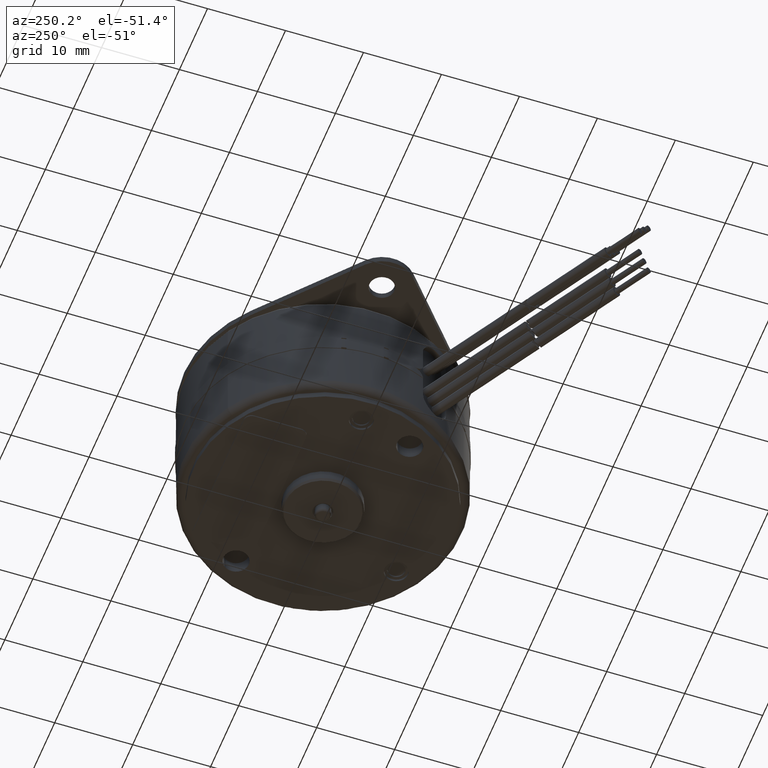
[diagram: clean part render]
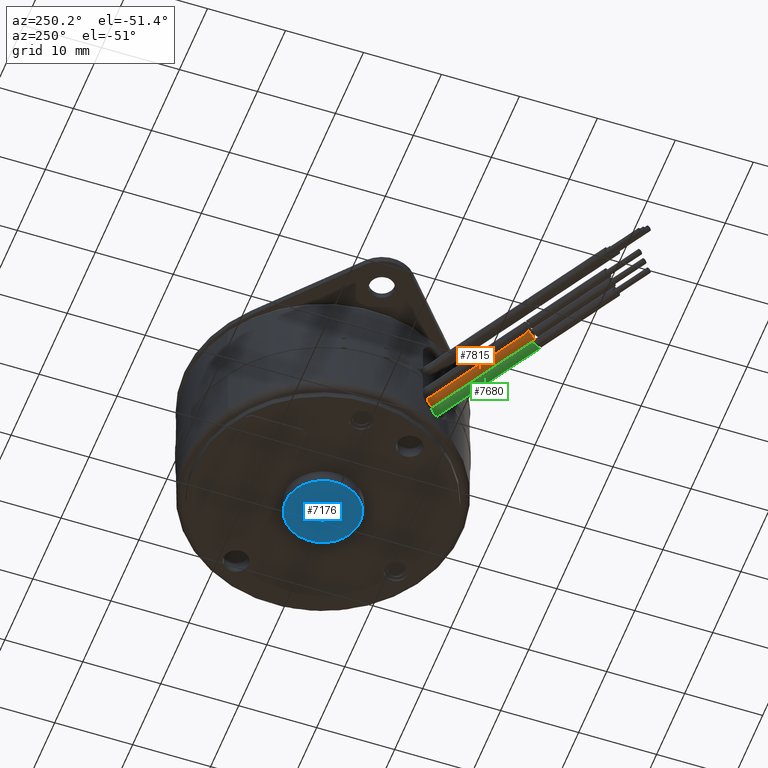
[diagram: same view with three faces highlighted in distinct colors, each labeled with its STEP entity id]
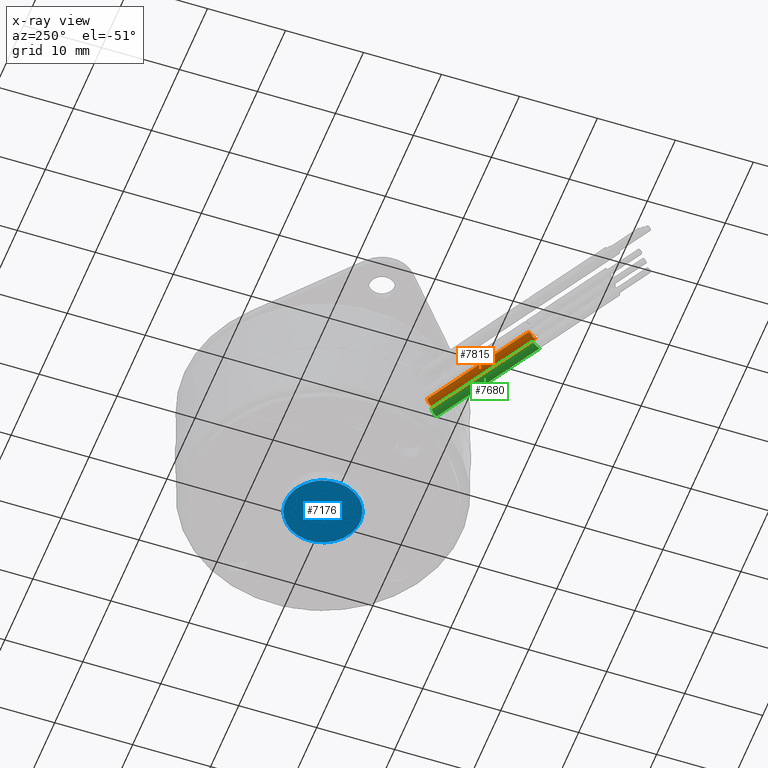
[diagram: x-ray of the same camera — body ghosted, the three highlighted faces saturated]
A machine part, auxiliary view with three faces highlighted in distinct colors.
The next image is the same camera in x-ray (body ghosted, the three faces saturated) — at least one of them is partly hidden behind the body in this view.
Their STEP definitions:

[orange] entity #7815 — the highlighted cylindrical surface (edge-blend (fillet) strip) has radius 0.635 mm, axis along (-0.866, -0.5, 0).
#2962=CARTESIAN_POINT('',(-1.138811806548E0,-6.286257896074E-1,-1.2E-1));
#2963=CARTESIAN_POINT('',(-1.139485406641E0,-6.290146928023E-1,
-1.212467608280E-1));
#2964=CARTESIAN_POINT('',(-1.140839860051E0,-6.300060442618E-1,
-1.236040337292E-1));
#2965=CARTESIAN_POINT('',(-1.142638944219E0,-6.318768995661E-1,
-1.269308235863E-1));
#2966=CARTESIAN_POINT('',(-1.143982488677E0,-6.339574052467E-1,
-1.300546549770E-1));
#2967=CARTESIAN_POINT('',(-1.144706708732E0,-6.361068004113E-1,
-1.329385435562E-1));
#2968=CARTESIAN_POINT('',(-1.144770985336E0,-6.381502306858E-1,
-1.354486534722E-1));
#2969=CARTESIAN_POINT('',(-1.144254890660E0,-6.401587388723E-1,
-1.377112974811E-1));
#2970=CARTESIAN_POINT('',(-1.143121210373E0,-6.422760705461E-1,
-1.398388955975E-1));
#2971=CARTESIAN_POINT('',(-1.141353475422E0,-6.445702752428E-1,
-1.417709501729E-1));
#2972=CARTESIAN_POINT('',(-1.139078218802E0,-6.471070944689E-1,
-1.433763897757E-1));
#2973=CARTESIAN_POINT('',(-1.136652120935E0,-6.498908981356E-1,
-1.444808550989E-1));
#2974=CARTESIAN_POINT('',(-1.134504726468E0,-6.527930399924E-1,
-1.450113853302E-1));
#2975=CARTESIAN_POINT('',(-1.132699061758E0,-6.558885791974E-1,
-1.450317036214E-1));
#2976=CARTESIAN_POINT('',(-1.131227309388E0,-6.592198669359E-1,
-1.445256153670E-1));
#2977=CARTESIAN_POINT('',(-1.130050998401E0,-6.626062286696E-1,
-1.434941480099E-1));
#2978=CARTESIAN_POINT('',(-1.128990580436E0,-6.658693222274E-1,
-1.419408871852E-1));
#2979=CARTESIAN_POINT('',(-1.127896227702E0,-6.686131393046E-1,
-1.400279286505E-1));
#2980=CARTESIAN_POINT('',(-1.126643302707E0,-6.707171633581E-1,
-1.379081481444E-1));
#2981=CARTESIAN_POINT('',(-1.125184802608E0,-6.722132358638E-1,
-1.356614700066E-1));
#2982=CARTESIAN_POINT('',(-1.123437801195E0,-6.732156820413E-1,
-1.332071223932E-1));
#2983=CARTESIAN_POINT('',(-1.121223487475E0,-6.737304186039E-1,
-1.303186198003E-1));
#2984=CARTESIAN_POINT('',(-1.118632558143E0,-6.736388651206E-1,
-1.270497526756E-1));
#2985=CARTESIAN_POINT('',(-1.116008157394E0,-6.729920868712E-1,
-1.235904122078E-1));
#2986=CARTESIAN_POINT('',(-1.114476641089E0,-6.723109021978E-1,
-1.212305367408E-1));
#2987=CARTESIAN_POINT('',(-1.113811806548E0,-6.719270597965E-1,-1.2E-1));
#2989=CARTESIAN_POINT('',(-5.677662643132E-1,-3.566675189975E-1,-1.2E-1));
#2990=CARTESIAN_POINT('',(-5.677662643132E-1,-3.566675189975E-1,
-1.225904274041E-1));
#2991=CARTESIAN_POINT('',(-5.681989034025E-1,-3.559801164018E-1,
-1.277947334159E-1));
#2992=CARTESIAN_POINT('',(-5.701076587032E-1,-3.529232327402E-1,
-1.349152310100E-1));
#2993=CARTESIAN_POINT('',(-5.730848500649E-1,-3.480776956131E-1,
-1.405961939504E-1));
#2994=CARTESIAN_POINT('',(-5.767518699610E-1,-3.419748936371E-1,
-1.441913101402E-1));
#2995=CARTESIAN_POINT('',(-5.793770744339E-1,-3.374893805309E-1,
-1.449999999397E-1));
#2996=CARTESIAN_POINT('',(-5.806699943492E-1,-3.352499775474E-1,
-1.449999999397E-1));
#2998=CARTESIAN_POINT('',(-5.806699943492E-1,-3.352499775474E-1,
-1.449999999397E-1));
#2999=CARTESIAN_POINT('',(-5.819653642051E-1,-3.330063311424E-1,
-1.449999999396E-1));
#3000=CARTESIAN_POINT('',(-5.845409076982E-1,-3.284836490856E-1,
-1.441883684441E-1));
#3001=CARTESIAN_POINT('',(-5.879934371359E-1,-3.222546015037E-1,
-1.405856496052E-1));
#3002=CARTESIAN_POINT('',(-5.906977992922E-1,-3.172595839781E-1,
-1.349045365092E-1));
#3003=CARTESIAN_POINT('',(-5.923888375690E-1,-3.140816666538E-1,
-1.277828848581E-1));
#3004=CARTESIAN_POINT('',(-5.927662643132E-1,-3.133662488084E-1,
-1.225857545199E-1));
#3005=CARTESIAN_POINT('',(-5.927662643132E-1,-3.133662488084E-1,-1.2E-1));
#3040=DIRECTION('',(8.660254037844E-1,5.E-1,1.648556462670E-14));
#3041=VECTOR('',#3040,6.305190815981E-1);
#3042=CARTESIAN_POINT('',(-1.138811806548E0,-6.286257896074E-1,-1.2E-1));
#3043=LINE('',#3042,#3041);
#3062=DIRECTION('',(-8.660254037844E-1,-5.E-1,0.E0));
#3063=VECTOR('',#3062,6.305190815981E-1);
#3064=CARTESIAN_POINT('',(-5.677662643132E-1,-3.566675189975E-1,-1.2E-1));
#3065=LINE('',#3064,#3063);
#3864=VERTEX_POINT('',#2998);
#3865=VERTEX_POINT('',#3005);
#3866=VERTEX_POINT('',#2989);
#4243=VERTEX_POINT('',#2962);
#4244=VERTEX_POINT('',#2987);
#7800=CARTESIAN_POINT('',(-5.606946750632E-1,-3.237172215810E-1,-1.2E-1));
#7801=DIRECTION('',(-8.660254037844E-1,-5.E-1,0.E0));
#7802=DIRECTION('',(-5.E-1,8.660254037844E-1,0.E0));
#7803=AXIS2_PLACEMENT_3D('',#7800,#7801,#7802);
#7804=CYLINDRICAL_SURFACE('',#7803,2.499999999996E-2);
#7806=ORIENTED_EDGE('',*,*,#7805,.T.);
#7808=ORIENTED_EDGE('',*,*,#7807,.F.);
#7809=ORIENTED_EDGE('',*,*,#5673,.T.);
#7810=ORIENTED_EDGE('',*,*,#5671,.T.);
#7812=ORIENTED_EDGE('',*,*,#7811,.F.);
#7813=EDGE_LOOP('',(#7806,#7808,#7809,#7810,#7812));
#7814=FACE_OUTER_BOUND('',#7813,.F.);
#7815=ADVANCED_FACE('',(#7814),#7804,.T.);
#2988=B_SPLINE_CURVE_WITH_KNOTS('',3,(#2962,#2963,#2964,#2965,#2966,#2967,#2968,
#2969,#2970,#2971,#2972,#2973,#2974,#2975,#2976,#2977,#2978,#2979,#2980,#2981,
#2982,#2983,#2984,#2985,#2986,#2987),.UNSPECIFIED.,.F.,.F.,(4,1,1,1,1,1,1,1,1,1,
1,1,1,1,1,1,1,1,1,1,1,1,1,4),(0.E0,4.347826086957E-2,8.695652173913E-2,
1.304347826087E-1,1.739130434783E-1,2.173913043478E-1,2.608695652174E-1,
3.043478260870E-1,3.478260869565E-1,3.913043478261E-1,4.347826086957E-1,
4.782608695652E-1,5.217391304348E-1,5.652173913043E-1,6.086956521739E-1,
6.521739130435E-1,6.956521739130E-1,7.391304347826E-1,7.826086956522E-1,
8.260869565217E-1,8.695652173913E-1,9.130434782609E-1,9.565217391304E-1,1.E0),
.UNSPECIFIED.);
#2997=B_SPLINE_CURVE_WITH_KNOTS('',3,(#2989,#2990,#2991,#2992,#2993,#2994,#2995,
#2996),.UNSPECIFIED.,.F.,.F.,(4,1,1,1,1,4),(0.E0,2.E-1,4.E-1,6.E-1,8.E-1,1.E0),
.UNSPECIFIED.);
#3006=B_SPLINE_CURVE_WITH_KNOTS('',3,(#2998,#2999,#3000,#3001,#3002,#3003,#3004,
#3005),.UNSPECIFIED.,.F.,.F.,(4,1,1,1,1,4),(0.E0,2.E-1,4.E-1,6.E-1,8.E-1,1.E0),
.UNSPECIFIED.);
#5671=EDGE_CURVE('',#3864,#3865,#3006,.T.);
#5673=EDGE_CURVE('',#3866,#3864,#2997,.T.);
#7805=EDGE_CURVE('',#4243,#4244,#2988,.T.);
#7807=EDGE_CURVE('',#3866,#4244,#3065,.T.);
#7811=EDGE_CURVE('',#4243,#3865,#3043,.T.);

[blue] entity #7176 — the highlighted planar face has unit normal (0, 0, 1).
#2205=CARTESIAN_POINT('',(0.E0,0.E0,-4.12E-1));
#2206=DIRECTION('',(0.E0,0.E0,1.E0));
#2207=DIRECTION('',(-5.000000000001E-1,-8.660254037844E-1,0.E0));
#2208=AXIS2_PLACEMENT_3D('',#2205,#2206,#2207);
#2210=CARTESIAN_POINT('',(0.E0,0.E0,-4.12E-1));
#2211=DIRECTION('',(0.E0,0.E0,1.E0));
#2212=DIRECTION('',(5.000000000001E-1,8.660254037844E-1,0.E0));
#2213=AXIS2_PLACEMENT_3D('',#2210,#2211,#2212);
#2215=CARTESIAN_POINT('',(0.E0,0.E0,-4.120000000001E-1));
#2216=DIRECTION('',(0.E0,0.E0,-1.E0));
#2217=DIRECTION('',(-5.E-1,-8.660254037844E-1,0.E0));
#2218=AXIS2_PLACEMENT_3D('',#2215,#2216,#2217);
#2220=CARTESIAN_POINT('',(0.E0,0.E0,-4.120000000001E-1));
#2221=DIRECTION('',(0.E0,0.E0,-1.E0));
#2222=DIRECTION('',(5.E-1,8.660254037844E-1,0.E0));
#2223=AXIS2_PLACEMENT_3D('',#2220,#2221,#2222);
#4361=CARTESIAN_POINT('',(9.422950184415E-2,1.632102847659E-1,-4.12E-1));
#4362=VERTEX_POINT('',#4361);
#4363=CARTESIAN_POINT('',(-9.422950184414E-2,-1.632102847659E-1,-4.12E-1));
#4364=VERTEX_POINT('',#4363);
#4365=CARTESIAN_POINT('',(-2.500000000002E-2,-4.330127018925E-2,
-4.120000000001E-1));
#4366=CARTESIAN_POINT('',(2.500000000002E-2,4.330127018925E-2,
-4.120000000001E-1));
#4367=VERTEX_POINT('',#4365);
#4368=VERTEX_POINT('',#4366);
#7161=CARTESIAN_POINT('',(0.E0,0.E0,-4.12E-1));
#7162=DIRECTION('',(0.E0,0.E0,1.E0));
#7163=DIRECTION('',(-5.E-1,-8.660254037844E-1,0.E0));
#7164=AXIS2_PLACEMENT_3D('',#7161,#7162,#7163);
#7165=PLANE('',#7164);
#7166=ORIENTED_EDGE('',*,*,#7140,.T.);
#7167=ORIENTED_EDGE('',*,*,#7156,.T.);
#7168=EDGE_LOOP('',(#7166,#7167));
#7169=FACE_OUTER_BOUND('',#7168,.F.);
#7171=ORIENTED_EDGE('',*,*,#7170,.T.);
#7173=ORIENTED_EDGE('',*,*,#7172,.T.);
#7174=EDGE_LOOP('',(#7171,#7173));
#7175=FACE_BOUND('',#7174,.F.);
#7176=ADVANCED_FACE('',(#7169,#7175),#7165,.F.);
#2209=CIRCLE('',#2208,1.884590036883E-1);
#2214=CIRCLE('',#2213,1.884590036883E-1);
#2219=CIRCLE('',#2218,5.000000000003E-2);
#2224=CIRCLE('',#2223,5.000000000003E-2);
#7140=EDGE_CURVE('',#4364,#4362,#2209,.T.);
#7156=EDGE_CURVE('',#4362,#4364,#2214,.T.);
#7170=EDGE_CURVE('',#4367,#4368,#2219,.T.);
#7172=EDGE_CURVE('',#4368,#4367,#2224,.T.);

[green] entity #7680 — the highlighted cylindrical surface (edge-blend (fillet) strip) has radius 0.635 mm, axis along (-0.866, -0.5, 0).
#2740=CARTESIAN_POINT('',(-1.116674188766E0,-6.527950472500E-1,-1.6E-1));
#2741=CARTESIAN_POINT('',(-1.116611085392E0,-6.527586145002E-1,
-1.605534948238E-1));
#2742=CARTESIAN_POINT('',(-1.116579101615E0,-6.527821852664E-1,
-1.616855454071E-1));
#2743=CARTESIAN_POINT('',(-1.116855682923E0,-6.531539664151E-1,
-1.634747627164E-1));
#2744=CARTESIAN_POINT('',(-1.117456771450E0,-6.538746878734E-1,
-1.652960935987E-1));
#2745=CARTESIAN_POINT('',(-1.118328536142E0,-6.549180710137E-1,
-1.671259891410E-1));
#2746=CARTESIAN_POINT('',(-1.119410782165E0,-6.562732952254E-1,
-1.689918405509E-1));
#2747=CARTESIAN_POINT('',(-1.120613364612E0,-6.579251868638E-1,
-1.709152653355E-1));
#2748=CARTESIAN_POINT('',(-1.121860978482E0,-6.599388320435E-1,
-1.729987976286E-1));
#2749=CARTESIAN_POINT('',(-1.122925274406E0,-6.623443420268E-1,
-1.752794242693E-1));
#2750=CARTESIAN_POINT('',(-1.123416849830E0,-6.648053479152E-1,
-1.774626485446E-1));
#2751=CARTESIAN_POINT('',(-1.123249935585E0,-6.672563536242E-1,
-1.794823141833E-1));
#2752=CARTESIAN_POINT('',(-1.122453994824E0,-6.697116049014E-1,
-1.812868863774E-1));
#2753=CARTESIAN_POINT('',(-1.121118686292E0,-6.724196067600E-1,
-1.829119912292E-1));
#2754=CARTESIAN_POINT('',(-1.119242202136E0,-6.756443035729E-1,
-1.842598952868E-1));
#2755=CARTESIAN_POINT('',(-1.117087873657E0,-6.792363964787E-1,
-1.850184515060E-1));
#2756=CARTESIAN_POINT('',(-1.114907790445E0,-6.830070199615E-1,
-1.850411620958E-1));
#2757=CARTESIAN_POINT('',(-1.112865466342E0,-6.866804018345E-1,
-1.843254675555E-1));
#2758=CARTESIAN_POINT('',(-1.110998228345E0,-6.899568087877E-1,
-1.830046234873E-1));
#2759=CARTESIAN_POINT('',(-1.109313939773E0,-6.925108949645E-1,
-1.813897180449E-1));
#2760=CARTESIAN_POINT('',(-1.107596228849E0,-6.944598313162E-1,
-1.795961378269E-1));
#2761=CARTESIAN_POINT('',(-1.105595943950E0,-6.958540779842E-1,
-1.776056857848E-1));
#2762=CARTESIAN_POINT('',(-1.103238402751E0,-6.967007407322E-1,
-1.754291456E-1));
#2763=CARTESIAN_POINT('',(-1.100585746152E0,-6.970151748497E-1,
-1.731125751725E-1));
#2764=CARTESIAN_POINT('',(-1.098149202969E0,-6.969487926298E-1,
-1.709731388947E-1));
#2765=CARTESIAN_POINT('',(-1.096065848938E0,-6.967289824245E-1,
-1.690042251838E-1));
#2766=CARTESIAN_POINT('',(-1.094343713298E0,-6.964680957939E-1,
-1.671305315599E-1));
#2767=CARTESIAN_POINT('',(-1.093002974784E0,-6.962346918455E-1,
-1.653001954425E-1));
#2768=CARTESIAN_POINT('',(-1.092076582204E0,-6.960741509211E-1,
-1.634772834804E-1));
#2769=CARTESIAN_POINT('',(-1.091615491027E0,-6.960203706022E-1,
-1.616862970374E-1));
#2770=CARTESIAN_POINT('',(-1.091611063147E0,-6.960598718458E-1,
-1.605536899443E-1));
#2771=CARTESIAN_POINT('',(-1.091674188766E0,-6.960963174390E-1,-1.6E-1));
#2773=CARTESIAN_POINT('',(-5.500680059423E-1,-3.833998419909E-1,-1.6E-1));
#2774=CARTESIAN_POINT('',(-5.500680059423E-1,-3.833998419909E-1,
-1.625793731553E-1));
#2775=CARTESIAN_POINT('',(-5.505322711267E-1,-3.827348868899E-1,
-1.677544274758E-1));
#2776=CARTESIAN_POINT('',(-5.525499840862E-1,-3.798236134332E-1,
-1.747995682661E-1));
#2777=CARTESIAN_POINT('',(-5.557302083198E-1,-3.751635856134E-1,
-1.804904807882E-1));
#2778=CARTESIAN_POINT('',(-5.596474139465E-1,-3.693022253626E-1,
-1.841235655425E-1));
#2779=CARTESIAN_POINT('',(-5.639969402753E-1,-3.626288925457E-1,
-1.854323214786E-1));
#2780=CARTESIAN_POINT('',(-5.682839205557E-1,-3.558694157740E-1,
-1.841469551838E-1));
#2781=CARTESIAN_POINT('',(-5.720068068004E-1,-3.498458600288E-1,
-1.804985222429E-1));
#2782=CARTESIAN_POINT('',(-5.749224679750E-1,-3.450236744901E-1,
-1.748054555929E-1));
#2783=CARTESIAN_POINT('',(-5.767357709637E-1,-3.419761543149E-1,
-1.677116828138E-1));
#2784=CARTESIAN_POINT('',(-5.771383878973E-1,-3.412939073809E-1,
-1.625595105573E-1));
#2785=CARTESIAN_POINT('',(-5.771383878973E-1,-3.412939073809E-1,-1.6E-1));
#2798=DIRECTION('',(8.660254037844E-1,5.E-1,2.374585500610E-14));
#2799=VECTOR('',#2798,6.230022797381E-1);
#2800=CARTESIAN_POINT('',(-1.116674188766E0,-6.527950472500E-1,-1.6E-1));
#2801=LINE('',#2800,#2799);
#2816=DIRECTION('',(-8.660254037844E-1,-5.E-1,-1.668726265066E-14));
#2817=VECTOR('',#2816,6.253929508961E-1);
#2818=CARTESIAN_POINT('',(-5.500680059423E-1,-3.833998419909E-1,-1.6E-1));
#2819=LINE('',#2818,#2817);
#3860=VERTEX_POINT('',#2773);
#3861=VERTEX_POINT('',#2785);
#4234=VERTEX_POINT('',#2740);
#4235=VERTEX_POINT('',#2771);
#7666=CARTESIAN_POINT('',(-5.429624515249E-1,-3.504299347759E-1,-1.6E-1));
#7667=DIRECTION('',(-8.660254037844E-1,-5.E-1,0.E0));
#7668=DIRECTION('',(-5.E-1,8.660254037844E-1,0.E0));
#7669=AXIS2_PLACEMENT_3D('',#7666,#7667,#7668);
#7670=CYLINDRICAL_SURFACE('',#7669,2.499999999995E-2);
#7672=ORIENTED_EDGE('',*,*,#7671,.T.);
#7674=ORIENTED_EDGE('',*,*,#7673,.F.);
#7675=ORIENTED_EDGE('',*,*,#5659,.T.);
#7677=ORIENTED_EDGE('',*,*,#7676,.F.);
#7678=EDGE_LOOP('',(#7672,#7674,#7675,#7677));
#7679=FACE_OUTER_BOUND('',#7678,.F.);
#7680=ADVANCED_FACE('',(#7679),#7670,.T.);
#2772=B_SPLINE_CURVE_WITH_KNOTS('',3,(#2740,#2741,#2742,#2743,#2744,#2745,#2746,
#2747,#2748,#2749,#2750,#2751,#2752,#2753,#2754,#2755,#2756,#2757,#2758,#2759,
#2760,#2761,#2762,#2763,#2764,#2765,#2766,#2767,#2768,#2769,#2770,#2771),
.UNSPECIFIED.,.F.,.F.,(4,1,1,1,1,1,1,1,1,1,1,1,1,1,1,1,1,1,1,1,1,1,1,1,1,1,1,1,
1,4),(0.E0,3.448275862069E-2,6.896551724138E-2,1.034482758621E-1,
1.379310344828E-1,1.724137931034E-1,2.068965517241E-1,2.413793103448E-1,
2.758620689655E-1,3.103448275862E-1,3.448275862069E-1,3.793103448276E-1,
4.137931034483E-1,4.482758620690E-1,4.827586206897E-1,5.172413793103E-1,
5.517241379310E-1,5.862068965517E-1,6.206896551724E-1,6.551724137931E-1,
6.896551724138E-1,7.241379310345E-1,7.586206896552E-1,7.931034482759E-1,
8.275862068966E-1,8.620689655172E-1,8.965517241379E-1,9.310344827586E-1,
9.655172413793E-1,1.E0),.UNSPECIFIED.);
#2786=B_SPLINE_CURVE_WITH_KNOTS('',3,(#2773,#2774,#2775,#2776,#2777,#2778,#2779,
#2780,#2781,#2782,#2783,#2784,#2785),.UNSPECIFIED.,.F.,.F.,(4,1,1,1,1,1,1,1,1,1,
4),(0.E0,1.E-1,2.E-1,3.E-1,4.E-1,5.E-1,6.E-1,7.E-1,8.E-1,9.E-1,1.E0),
.UNSPECIFIED.);
#5659=EDGE_CURVE('',#3860,#3861,#2786,.T.);
#7671=EDGE_CURVE('',#4234,#4235,#2772,.T.);
#7673=EDGE_CURVE('',#3860,#4235,#2819,.T.);
#7676=EDGE_CURVE('',#4234,#3861,#2801,.T.);